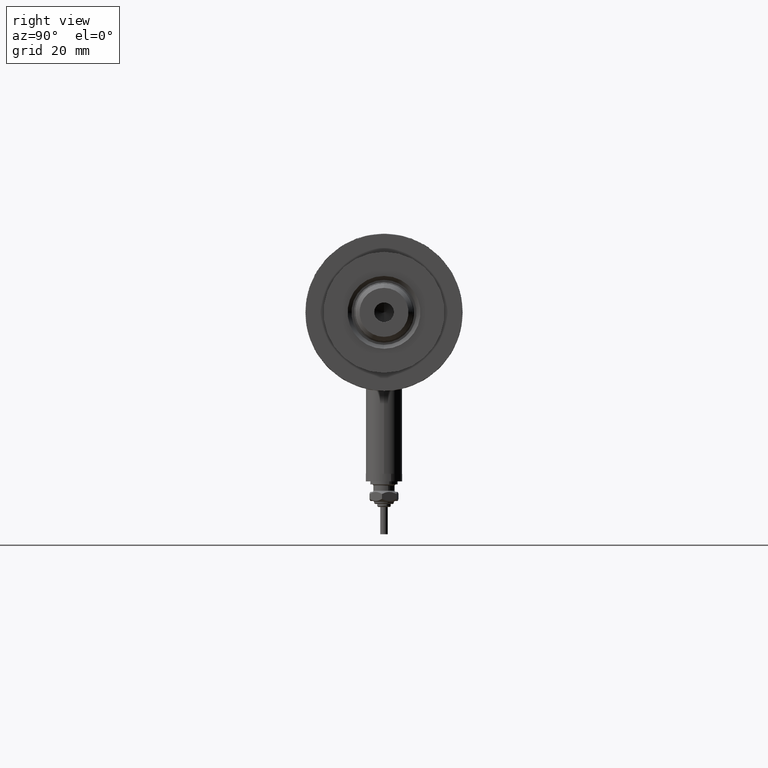
[diagram: clean part render]
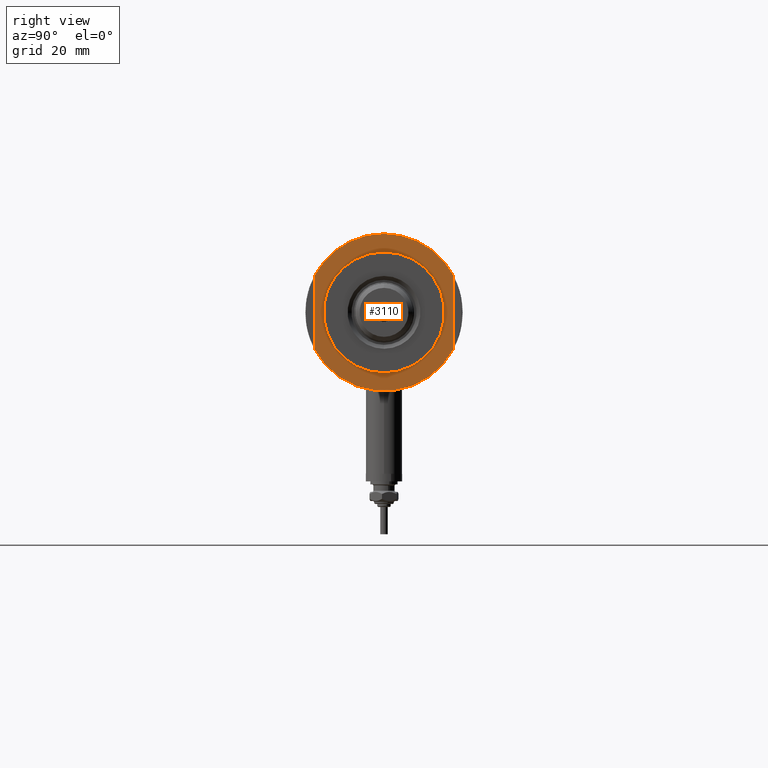
[diagram: same view with one face highlighted and labeled with its STEP entity id]
A machine part, right view. The second image highlights one B-rep face of the part: STEP entity #3110.
In plain terms, the highlighted planar face has unit normal (1, 0, -0).
Its self-contained STEP definition (entity closure, byte-faithful):
#6 = AXIS2_PLACEMENT_3D ( 'NONE', #4400, #3497, #2543 ) ;
#66 = CARTESIAN_POINT ( 'NONE',  ( 0.000000000000000000, 0.000000000000000000, 15.50000000000000000 ) ) ;
#94 = CARTESIAN_POINT ( 'NONE',  ( 0.000000000000000000, 0.000000000000000000, 15.50000000000000000 ) ) ;
#131 = PLANE ( 'NONE',  #2938 ) ;
#177 = DIRECTION ( 'NONE',  ( 1.000000000000000000, 0.000000000000000000, 0.000000000000000000 ) ) ;
#371 = EDGE_CURVE ( 'NONE', #2232, #4528, #2755, .T. ) ;
#416 = CARTESIAN_POINT ( 'NONE',  ( 0.000000000000000000, 0.000000000000000000, 15.50000000000000000 ) ) ;
#480 = DIRECTION ( 'NONE',  ( -1.000000000000000000, -0.000000000000000000, -0.000000000000000000 ) ) ;
#569 = EDGE_CURVE ( 'NONE', #974, #2721, #1365, .T. ) ;
#645 = ORIENTED_EDGE ( 'NONE', *, *, #4949, .F. ) ;
#657 = DIRECTION ( 'NONE',  ( 0.000000000000000000, 0.000000000000000000, 1.000000000000000000 ) ) ;
#712 = ORIENTED_EDGE ( 'NONE', *, *, #371, .T. ) ;
#944 = DIRECTION ( 'NONE',  ( -0.000000000000000000, -0.000000000000000000, -1.000000000000000000 ) ) ;
#964 = ORIENTED_EDGE ( 'NONE', *, *, #4844, .T. ) ;
#974 = VERTEX_POINT ( 'NONE', #2010 ) ;
#1365 = CIRCLE ( 'NONE', #6, 26.00000000000000355 ) ;
#1403 = ORIENTED_EDGE ( 'NONE', *, *, #1794, .F. ) ;
#1422 = CARTESIAN_POINT ( 'NONE',  ( 0.000000000000000000, 0.000000000000000000, 15.50000000000000000 ) ) ;
#1502 = CARTESIAN_POINT ( 'NONE',  ( 0.000000000000000000, 0.000000000000000000, 15.50000000000000000 ) ) ;
#1552 = ORIENTED_EDGE ( 'NONE', *, *, #3722, .T. ) ;
#1622 = DIRECTION ( 'NONE',  ( 0.000000000000000000, 0.000000000000000000, 1.000000000000000000 ) ) ;
#1794 = EDGE_CURVE ( 'NONE', #4607, #2721, #5380, .T. ) ;
#2010 = CARTESIAN_POINT ( 'NONE',  ( 12.12435565298215323, -22.99999999999999645, 15.50000000000000000 ) ) ;
#2024 = DIRECTION ( 'NONE',  ( 1.000000000000000000, 0.000000000000000000, -0.000000000000000000 ) ) ;
#2120 = FACE_OUTER_BOUND ( 'NONE', #5028, .T. ) ;
#2232 = VERTEX_POINT ( 'NONE', #4772 ) ;
#2280 = DIRECTION ( 'NONE',  ( 0.000000000000000000, 0.000000000000000000, 1.000000000000000000 ) ) ;
#2414 = LINE ( 'NONE', #4242, #3759 ) ;
#2489 = DIRECTION ( 'NONE',  ( 1.000000000000000000, 0.000000000000000000, 0.000000000000000000 ) ) ;
#2543 = DIRECTION ( 'NONE',  ( 1.000000000000000000, 0.000000000000000000, 0.000000000000000000 ) ) ;
#2642 = AXIS2_PLACEMENT_3D ( 'NONE', #1422, #2280, #177 ) ;
#2711 = CARTESIAN_POINT ( 'NONE',  ( -12.12435565298215323, -22.99999999999999645, 15.50000000000000000 ) ) ;
#2721 = VERTEX_POINT ( 'NONE', #2871 ) ;
#2755 = CIRCLE ( 'NONE', #3559, 20.00000000000000000 ) ;
#2823 = EDGE_LOOP ( 'NONE', ( #964, #712 ) ) ;
#2848 = CIRCLE ( 'NONE', #2642, 26.00000000000000355 ) ;
#2850 = CIRCLE ( 'NONE', #6231, 26.00000000000000355 ) ;
#2871 = CARTESIAN_POINT ( 'NONE',  ( 12.12435565298214790, 23.00000000000000355, 15.50000000000000000 ) ) ;
#2923 = CARTESIAN_POINT ( 'NONE',  ( -12.12435565298215145, 23.00000000000000355, 15.50000000000000000 ) ) ;
#2938 = AXIS2_PLACEMENT_3D ( 'NONE', #66, #657, #2024 ) ;
#3077 = ORIENTED_EDGE ( 'NONE', *, *, #569, .T. ) ;
#3110 = ADVANCED_FACE ( 'NONE', ( #4427, #2120 ), #131, .T. ) ;
#3480 = VECTOR ( 'NONE', #4920, 1000.000000000000000 ) ;
#3497 = DIRECTION ( 'NONE',  ( 0.000000000000000000, 0.000000000000000000, 1.000000000000000000 ) ) ;
#3559 = AXIS2_PLACEMENT_3D ( 'NONE', #416, #944, #3900 ) ;
#3722 = EDGE_CURVE ( 'NONE', #4140, #5330, #2848, .T. ) ;
#3759 = VECTOR ( 'NONE', #480, 1000.000000000000000 ) ;
#3900 = DIRECTION ( 'NONE',  ( 1.000000000000000000, 0.000000000000000000, 0.000000000000000000 ) ) ;
#3965 = EDGE_CURVE ( 'NONE', #4607, #4140, #2850, .T. ) ;
#4108 = CARTESIAN_POINT ( 'NONE',  ( 20.00000000000000000, 0.000000000000000000, 15.50000000000000000 ) ) ;
#4140 = VERTEX_POINT ( 'NONE', #6230 ) ;
#4242 = CARTESIAN_POINT ( 'NONE',  ( -12.12435565298215145, -22.99999999999999645, 15.50000000000000000 ) ) ;
#4246 = DIRECTION ( 'NONE',  ( -0.000000000000000000, -0.000000000000000000, -1.000000000000000000 ) ) ;
#4400 = CARTESIAN_POINT ( 'NONE',  ( 0.000000000000000000, 0.000000000000000000, 15.50000000000000000 ) ) ;
#4427 = FACE_BOUND ( 'NONE', #2823, .T. ) ;
#4528 = VERTEX_POINT ( 'NONE', #4108 ) ;
#4607 = VERTEX_POINT ( 'NONE', #6040 ) ;
#4772 = CARTESIAN_POINT ( 'NONE',  ( -20.00000000000000000, 2.449293598294706513E-15, 15.50000000000000000 ) ) ;
#4844 = EDGE_CURVE ( 'NONE', #4528, #2232, #5406, .T. ) ;
#4920 = DIRECTION ( 'NONE',  ( 1.000000000000000000, 0.000000000000000000, 0.000000000000000000 ) ) ;
#4949 = EDGE_CURVE ( 'NONE', #974, #5330, #2414, .T. ) ;
#5028 = EDGE_LOOP ( 'NONE', ( #645, #3077, #1403, #6100, #1552 ) ) ;
#5133 = DIRECTION ( 'NONE',  ( 1.000000000000000000, 0.000000000000000000, 0.000000000000000000 ) ) ;
#5198 = AXIS2_PLACEMENT_3D ( 'NONE', #1502, #4246, #5133 ) ;
#5330 = VERTEX_POINT ( 'NONE', #2711 ) ;
#5380 = LINE ( 'NONE', #2923, #3480 ) ;
#5406 = CIRCLE ( 'NONE', #5198, 20.00000000000000000 ) ;
#6040 = CARTESIAN_POINT ( 'NONE',  ( -12.12435565298214613, 23.00000000000000355, 15.50000000000000000 ) ) ;
#6100 = ORIENTED_EDGE ( 'NONE', *, *, #3965, .T. ) ;
#6230 = CARTESIAN_POINT ( 'NONE',  ( -26.00000000000000355, 0.000000000000000000, 15.50000000000000000 ) ) ;
#6231 = AXIS2_PLACEMENT_3D ( 'NONE', #94, #1622, #2489 ) ;